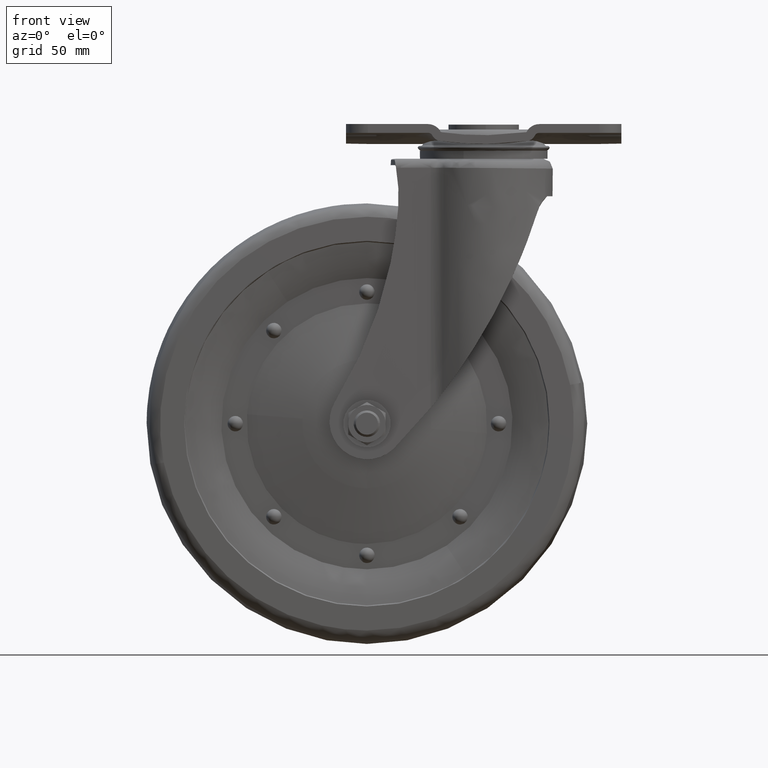
[diagram: clean part render]
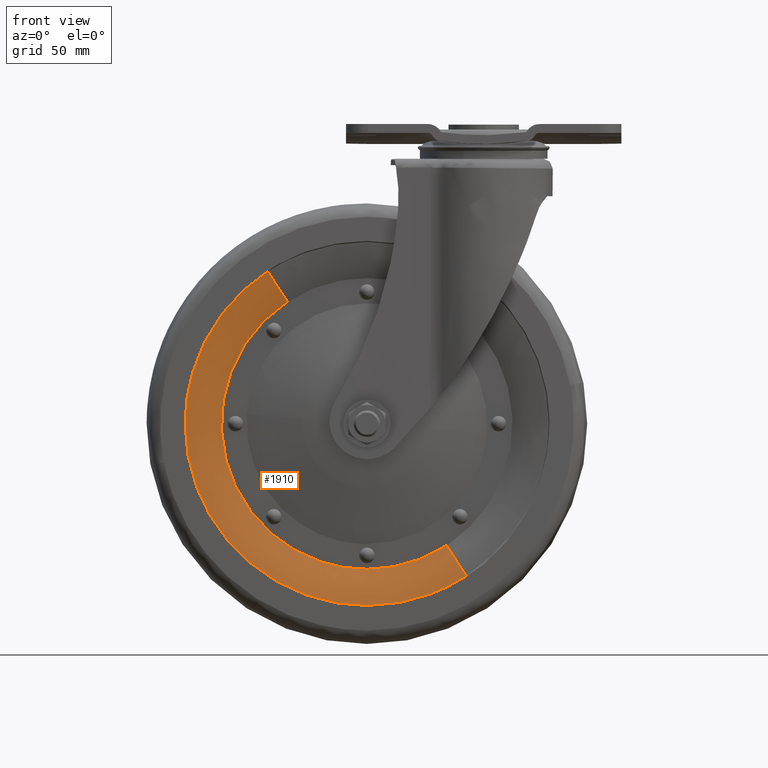
[diagram: same view with one face highlighted and labeled with its STEP entity id]
A machine part, front view. The second image highlights one B-rep face of the part: STEP entity #1910.
In plain terms, the highlighted face is a freeform B-spline surface patch.
Its self-contained STEP definition (entity closure, byte-faithful):
#1401=CARTESIAN_POINT('',(-53.0,-10.499999999999901,-201.829733000000000));
#1402=VERTEX_POINT('',#1401);
#1403=CARTESIAN_POINT('',(-16.883060482848801,-10.500000000488191,-191.090255211322300));
#1404=VERTEX_POINT('',#1403);
#1405=CARTESIAN_POINT('',(-53.0,-10.499999999999901,-201.829733000000000));
#1406=CARTESIAN_POINT('',(-33.344822647521596,-10.500000000244045,-201.829733000374120));
#1407=CARTESIAN_POINT('',(-16.883060482848794,-10.500000000488193,-191.090255211322300));
#1415=(BOUNDED_CURVE()B_SPLINE_CURVE(2,(#1405,#1406,#1407),.UNSPECIFIED.,.F.,.U.)B_SPLINE_CURVE_WITH_KNOTS((3,3),(0.0,0.093601467030247),.UNSPECIFIED.)CURVE()GEOMETRIC_REPRESENTATION_ITEM()RATIONAL_B_SPLINE_CURVE((1.0,0.890339060143398,0.862793519058746))REPRESENTATION_ITEM(''));
#1416=EDGE_CURVE('',#1402,#1404,#1415,.T.);
#1445=CARTESIAN_POINT('',(-89.116939517151209,-10.500000000488191,-80.368210788677686));
#1446=VERTEX_POINT('',#1445);
#1460=CARTESIAN_POINT('',(-89.116939517151209,-10.500000000488191,-80.368210788677686));
#1461=CARTESIAN_POINT('',(-92.813083152965561,-10.500000000483430,-82.778907087373241));
#1462=CARTESIAN_POINT('',(-99.028961966079862,-10.500000000471591,-87.787904350281480));
#1463=CARTESIAN_POINT('',(-105.683951386434900,-10.500000000450530,-95.494071766381865));
#1464=CARTESIAN_POINT('',(-110.299664756036290,-10.500000000429820,-102.506111164415400));
#1465=CARTESIAN_POINT('',(-114.119022387809490,-10.500000000406180,-109.987004120068600));
#1466=CARTESIAN_POINT('',(-116.931268185154710,-10.500000000379270,-118.148638746919400));
#1467=CARTESIAN_POINT('',(-118.809289522436500,-10.500000000346260,-127.575813448100500));
#1468=CARTESIAN_POINT('',(-119.350760749019400,-10.500000000313280,-136.747606812448200));
#1469=CARTESIAN_POINT('',(-118.346456477590100,-10.500000000272619,-147.427883524970810));
#1470=CARTESIAN_POINT('',(-115.758291110361000,-10.500000000232800,-157.398856606060800));
#1471=CARTESIAN_POINT('',(-111.325956871817400,-10.500000000191079,-167.412323083856710));
#1472=CARTESIAN_POINT('',(-106.212402097611000,-10.500000000156710,-175.313060697014010));
#1473=CARTESIAN_POINT('',(-100.130208432710210,-10.500000000122860,-182.323323570968990));
#1474=CARTESIAN_POINT('',(-94.037424822271447,-10.500000000097019,-187.786990924094910));
#1475=CARTESIAN_POINT('',(-87.382406019140504,-10.500000000072671,-192.347940316940990));
#1476=CARTESIAN_POINT('',(-81.138009037790681,-10.500000000053570,-195.663927754012290));
#1477=CARTESIAN_POINT('',(-74.186114005107513,-10.500000000035490,-198.505661882538390));
#1478=CARTESIAN_POINT('',(-64.914299057451601,-10.500000000015261,-201.075706722028800));
#1479=CARTESIAN_POINT('',(-57.412789182528350,-10.500000000006560,-201.830266217464210));
#1480=CARTESIAN_POINT('',(-53.0,-10.499999999999901,-201.829733000000000));
#1481=B_SPLINE_CURVE_WITH_KNOTS('',3,(#1460,#1461,#1462,#1463,#1464,#1465,#1466,#1467,#1468,#1469,#1470,#1471,#1472,#1473,#1474,#1475,#1476,#1477,#1478,#1479,#1480),.UNSPECIFIED.,.F.,.U.,(4,1,1,1,1,1,1,1,1,1,1,1,1,1,1,1,1,1,4),(0.000000265029939,13.238395278629129,23.829114421261920,30.448372653528139,38.391374041490110,48.982089424349176,56.263219353649973,67.184795212199262,76.451675286830735,88.366243849376815,97.964059625514750,109.216710041084300,116.497858097221400,125.764756117374110,133.707775735119100,140.658017337892690,146.946209179900110,156.213155146644710,169.451426680905600),.UNSPECIFIED.);
#1482=EDGE_CURVE('',#1446,#1402,#1481,.T.);
#1754=CARTESIAN_POINT('',(-7.922466394535142,-15.499999999949139,-204.825296302889090));
#1755=VERTEX_POINT('',#1754);
#1786=CARTESIAN_POINT('',(-98.077533605464851,-15.499999999949139,-66.633169697110986));
#1787=VERTEX_POINT('',#1786);
#1801=CARTESIAN_POINT('',(-98.077533605464851,-15.499999999949139,-66.633169697110986));
#1802=CARTESIAN_POINT('',(-93.314185280361926,-14.699102309644276,-73.934558905663465));
#1803=CARTESIAN_POINT('',(-89.116939517151209,-10.500000000488189,-80.368210788677686));
#1811=(BOUNDED_CURVE()B_SPLINE_CURVE(2,(#1801,#1802,#1803),.UNSPECIFIED.,.F.,.U.)B_SPLINE_CURVE_WITH_KNOTS((3,3),(-1.394959711226777,-0.602600248514036),.UNSPECIFIED.)CURVE()GEOMETRIC_REPRESENTATION_ITEM()RATIONAL_B_SPLINE_CURVE((0.947031941394556,0.927391866408569,0.947153276741674))REPRESENTATION_ITEM(''));
#1812=EDGE_CURVE('',#1787,#1446,#1811,.T.);
#1816=CARTESIAN_POINT('',(-7.922466394535142,-15.499999999949136,-204.825296302889030));
#1817=CARTESIAN_POINT('',(-12.685814719638078,-14.699102309644289,-197.523907094336610));
#1818=CARTESIAN_POINT('',(-16.883060482848798,-10.500000000488193,-191.090255211322360));
#1826=(BOUNDED_CURVE()B_SPLINE_CURVE(2,(#1816,#1817,#1818),.UNSPECIFIED.,.F.,.U.)B_SPLINE_CURVE_WITH_KNOTS((3,3),(-1.394959711226780,-0.602600248514037),.UNSPECIFIED.)CURVE()GEOMETRIC_REPRESENTATION_ITEM()RATIONAL_B_SPLINE_CURVE((0.947031941394556,0.927391866408569,0.947153276741673))REPRESENTATION_ITEM(''));
#1827=EDGE_CURVE('',#1755,#1404,#1826,.T.);
#1832=CARTESIAN_POINT('',(-96.591760878043075,-15.569635847041308,-64.645791271925262));
#1833=CARTESIAN_POINT('',(-97.561910543189526,-15.569635847041305,-65.278706550195210));
#1834=CARTESIAN_POINT('',(-168.353622326473070,-15.569635847041306,-111.462463110849110));
#1835=CARTESIAN_POINT('',(-122.810196107811990,-15.569635847041305,-181.272659218661150));
#1836=CARTESIAN_POINT('',(-77.266769889150851,-15.569635847041306,-251.082855326473120));
#1837=CARTESIAN_POINT('',(-6.475058105551355,-15.569635847041310,-204.899098765613080));
#1838=CARTESIAN_POINT('',(-5.504908440096253,-15.569635847041312,-204.266183487141690));
#1839=CARTESIAN_POINT('',(-91.557551868890130,-14.881530613194036,-72.854886191266331));
#1840=CARTESIAN_POINT('',(-92.415663477162227,-14.881530613194036,-73.414709038037330));
#1841=CARTESIAN_POINT('',(-155.031970870845330,-14.881530613194039,-114.264919105705220));
#1842=CARTESIAN_POINT('',(-114.748142382570040,-14.881530613194037,-176.013061488275270));
#1843=CARTESIAN_POINT('',(-74.464313894294762,-14.881530613194039,-237.761203870845410));
#1844=CARTESIAN_POINT('',(-11.848006500332191,-14.881530613194037,-196.910993802995110));
#1845=CARTESIAN_POINT('',(-10.989894891787081,-14.881530613194039,-196.351170956046050));
#1846=CARTESIAN_POINT('',(-87.178884802054142,-10.082133639520015,-79.995013569072015));
#1847=CARTESIAN_POINT('',(-87.939547665354411,-10.082133639520015,-80.491261895584216));
#1848=CARTESIAN_POINT('',(-143.445031115549140,-10.082133639520011,-116.702446381315500));
#1849=CARTESIAN_POINT('',(-107.735908867116860,-10.082133639520015,-171.438355248432370));
#1850=CARTESIAN_POINT('',(-72.026786618684497,-10.082133639520011,-226.174264115549110));
#1851=CARTESIAN_POINT('',(-16.521303168241992,-10.082133639520013,-189.963079629656250));
#1852=CARTESIAN_POINT('',(-15.760640304699736,-10.082133639520015,-189.466831302986180));
#1860=(BOUNDED_SURFACE()B_SPLINE_SURFACE(2,2,((#1832,#1839,#1846),(#1833,#1840,#1847),(#1834,#1841,#1848),(#1835,#1842,#1849),(#1836,#1843,#1850),(#1837,#1844,#1851),(#1838,#1845,#1852)),.UNSPECIFIED.,.F.,.F.,.U.)B_SPLINE_SURFACE_WITH_KNOTS((3,1,2,1,3),(3,3),(0.0,2.762064421441868,140.865285506797790,278.968506592153690,281.730571014489780),(0.0,19.062550185073430),.UNSPECIFIED.)GEOMETRIC_REPRESENTATION_ITEM()RATIONAL_B_SPLINE_SURFACE(((0.960211598127607,0.936166319006416,0.960346618138246),(0.954651944211033,0.930745887976237,0.954786182451766),(0.671109594439084,0.654303905411099,0.671203962414598),(0.949092290294460,0.925325456946059,0.949225746765286),(0.671109594439084,0.654303905411099,0.671203962414598),(0.954651944212833,0.930745887977992,0.954786182453566),(0.960211598131207,0.936166319009926,0.960346618141846)))REPRESENTATION_ITEM('')SURFACE());
#1861=CARTESIAN_POINT('',(-53.0,-15.500000000000000,-218.229232999999990));
#1862=VERTEX_POINT('',#1861);
#1863=CARTESIAN_POINT('',(-53.0,-15.500000000000000,-218.229232999999990));
#1864=CARTESIAN_POINT('',(-28.468383271858805,-15.499999999974566,-218.229232999768210));
#1865=CARTESIAN_POINT('',(-7.922466394535142,-15.499999999949136,-204.825296302889090));
#1873=(BOUNDED_CURVE()B_SPLINE_CURVE(2,(#1863,#1864,#1865),.UNSPECIFIED.,.F.,.U.)B_SPLINE_CURVE_WITH_KNOTS((3,3),(0.0,0.093601467029690),.UNSPECIFIED.)CURVE()GEOMETRIC_REPRESENTATION_ITEM()RATIONAL_B_SPLINE_CURVE((1.0,0.890339060144051,0.862793519059074))REPRESENTATION_ITEM(''));
#1874=EDGE_CURVE('',#1862,#1755,#1873,.T.);
#1875=ORIENTED_EDGE('',*,*,#1874,.T.);
#1876=ORIENTED_EDGE('',*,*,#1827,.T.);
#1877=ORIENTED_EDGE('',*,*,#1416,.F.);
#1878=ORIENTED_EDGE('',*,*,#1482,.F.);
#1879=ORIENTED_EDGE('',*,*,#1812,.F.);
#1880=CARTESIAN_POINT('',(-135.499999999902290,-15.500000484433871,-135.729232999999990));
#1881=VERTEX_POINT('',#1880);
#1882=CARTESIAN_POINT('',(-98.077533605464851,-15.499999999949136,-66.633169697110986));
#1883=CARTESIAN_POINT('',(-135.499999999608290,-15.500000242186665,-91.047187020800479));
#1884=CARTESIAN_POINT('',(-135.499999999902310,-15.500000484433867,-135.729232999999970));
#1892=(BOUNDED_CURVE()B_SPLINE_CURVE(2,(#1882,#1883,#1884),.UNSPECIFIED.,.F.,.U.)B_SPLINE_CURVE_WITH_KNOTS((3,3),(0.593601467029690,0.749999999999356),.UNSPECIFIED.)CURVE()GEOMETRIC_REPRESENTATION_ITEM()RATIONAL_B_SPLINE_CURVE((0.862793519059074,0.816767721042686,0.999999999998490))REPRESENTATION_ITEM(''));
#1893=EDGE_CURVE('',#1787,#1881,#1892,.T.);
#1894=ORIENTED_EDGE('',*,*,#1893,.T.);
#1895=CARTESIAN_POINT('',(-135.499999999902310,-15.500000484433867,-135.729232999999970));
#1896=CARTESIAN_POINT('',(-135.500000000305080,-15.500000242225871,-218.229233000068940));
#1897=CARTESIAN_POINT('',(-53.0,-15.500000000000000,-218.229232999999990));
#1905=(BOUNDED_CURVE()B_SPLINE_CURVE(2,(#1895,#1896,#1897),.UNSPECIFIED.,.F.,.U.)B_SPLINE_CURVE_WITH_KNOTS((3,3),(0.749999999999356,1.0),.UNSPECIFIED.)CURVE()GEOMETRIC_REPRESENTATION_ITEM()RATIONAL_B_SPLINE_CURVE((1.000000000001510,0.707106781185793,1.0))REPRESENTATION_ITEM(''));
#1906=EDGE_CURVE('',#1881,#1862,#1905,.T.);
#1907=ORIENTED_EDGE('',*,*,#1906,.T.);
#1908=EDGE_LOOP('',(#1875,#1876,#1877,#1878,#1879,#1894,#1907));
#1909=FACE_OUTER_BOUND('',#1908,.T.);
#1910=ADVANCED_FACE('',(#1909),#1860,.T.);